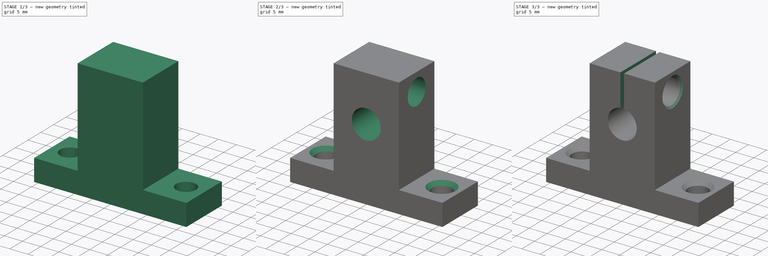
[diagram: build sequence overview — one tinted view per stage of 3, left to right]
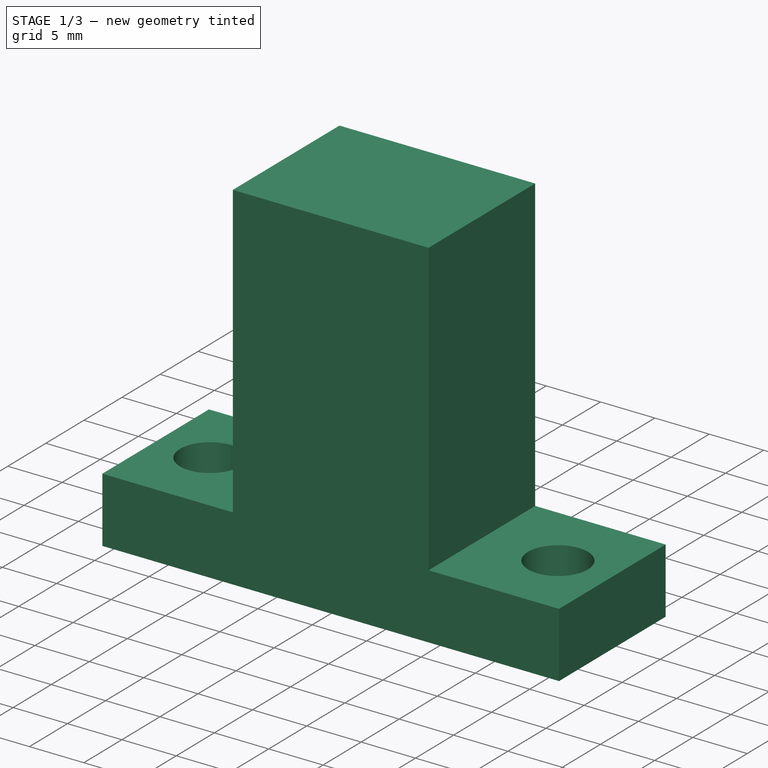
[diagram: stage 1 of 3 — iso view after this stage's code; geometry added in this stage tinted green]
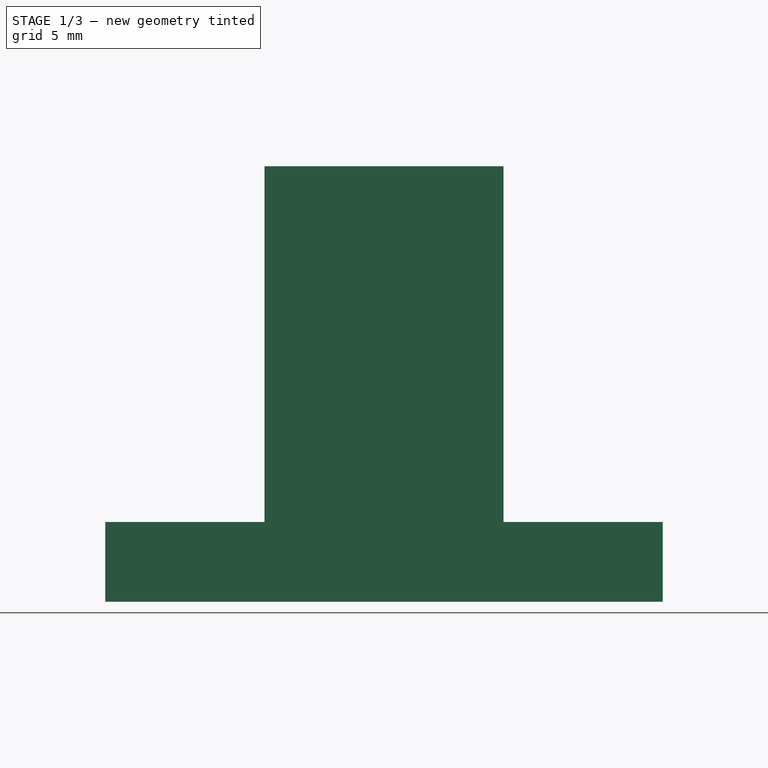
[diagram: stage 1 of 3 — front view after this stage's code; geometry added in this stage tinted green]
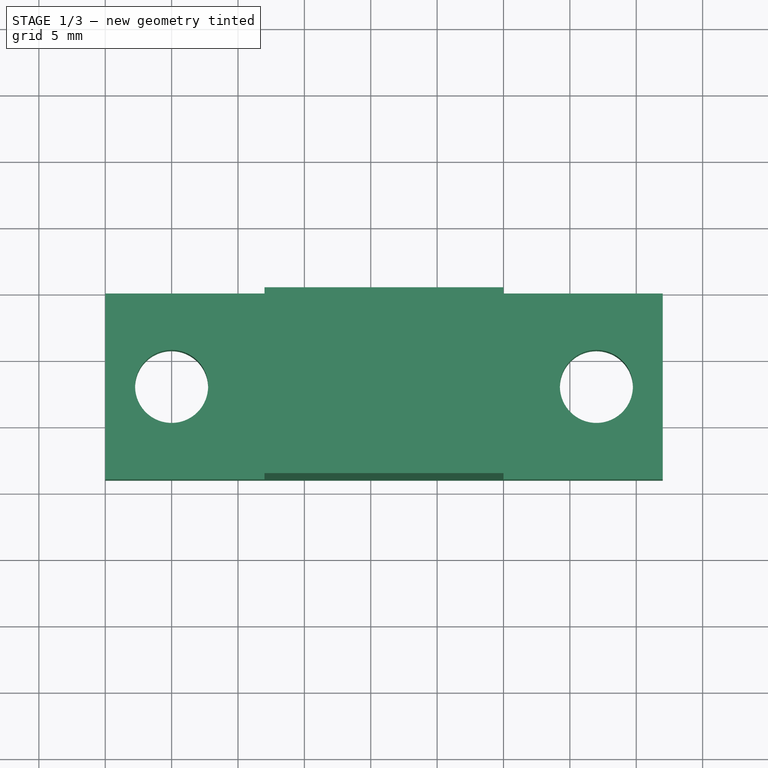
[diagram: stage 1 of 3 — top view after this stage's code; geometry added in this stage tinted green]
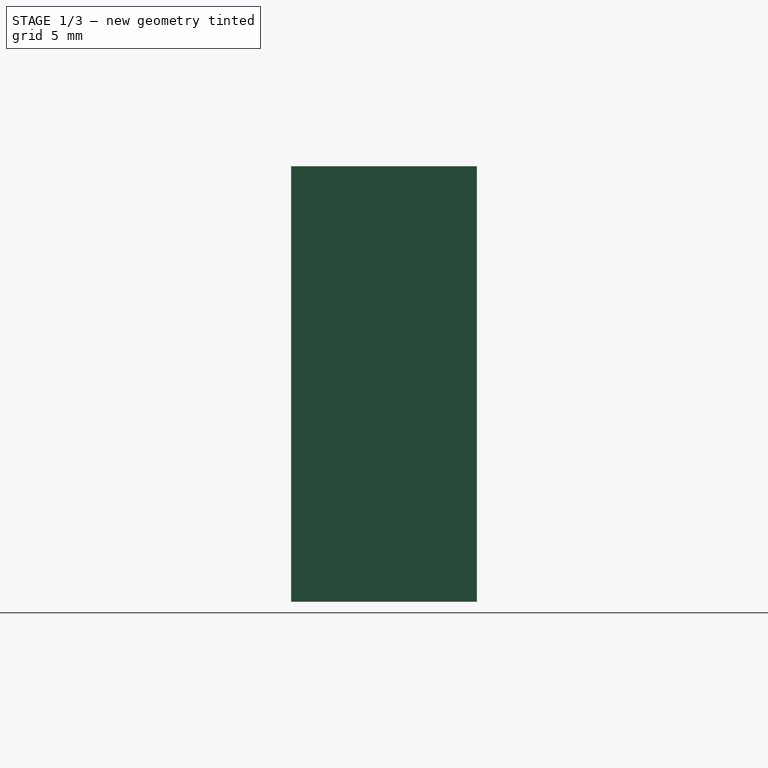
[diagram: stage 1 of 3 — right view after this stage's code; geometry added in this stage tinted green]
FCSTD DOCUMENT  (FreeCAD 2022.111R30764 (Git))
Label: SK08
Comment: This model is licensed under CC-BY 3.0.\n\nDon´t forget to share your modifications with the community.
License: Creative Commons Attribution
LicenseURL: http://creativecommons.org/licenses/by/4.0/
objects: Sketcher::SketchObject×5, PartDesign::Pocket×4, PartDesign::Chamfer×2, PartDesign::Pad×1, PartDesign::Body×1, App::Part×1
note: 27 computed .brp shape members not serialized (recipe doc carries the construction recipe); baked Part::Feature solids carry a one-line shape summary decoded from their .brp

FEATURE [Sketcher::SketchObject] Sketch
  FullyConstrained = true
  MapMode = 5
  Placement = pos=(0,0,0) rot=(1,0,0;1.5708rad)
  Support = -> [XZ_Plane]
  TreeRank = 0
  sketch-geometry (8):
    g0: LineSegment StartX=0 StartY=0 StartZ=0 EndX=42 EndY=0 EndZ=0
    g1: LineSegment StartX=42 StartY=0 StartZ=0 EndX=42 EndY=6 EndZ=0
    g2: LineSegment StartX=42 StartY=6 StartZ=0 EndX=30 EndY=6 EndZ=0
    g3: LineSegment StartX=30 StartY=6 StartZ=0 EndX=30 EndY=32.8 EndZ=0
    g4: LineSegment StartX=30 StartY=32.8 StartZ=0 EndX=12 EndY=32.8 EndZ=0
    g5: LineSegment StartX=12 StartY=32.8 StartZ=0 EndX=12 EndY=6 EndZ=0
    g6: LineSegment StartX=12 StartY=6 StartZ=0 EndX=0 EndY=6 EndZ=0
    g7: LineSegment StartX=0 StartY=6 StartZ=0 EndX=0 EndY=0 EndZ=0
  constraints (23):
    c: Coincident(g-1,g0)
    c: PointOnObject(g0,g-1)
    c: Coincident(g0,g1)
    c: Vertical(g1)
    c: Coincident(g1,g2)
    c: Horizontal(g2)
    c: Coincident(g2,g3)
    c: Vertical(g3)
    c: Coincident(g3,g4)
    c: Horizontal(g4)
    c: Coincident(g4,g5)
    c: Vertical(g5)
    c: Coincident(g5,g6)
    c: Horizontal(g6)
    c: Coincident(g6,g7)
    c: Coincident(g7,g0)
    c: Vertical(g7)
    c: DistanceX(g0,g0) = 42
    c: DistanceX(g4,g4) = 18
    c: DistanceY(g1,g1) = 6
    c: DistanceY(g0,g3) = 32.8
    c: DistanceX(g6,g6) = 12
    c: Horizontal(g5,g2)
FEATURE [PartDesign::Pad] Pad
  AddSubType = 0
  CheckUpToFaceLimits = true
  ClaimChildren = false
  Direction = (0,-1,-2e-16)
  Fit = 0
  FitJoin = 0
  InnerFit = 0
  InnerFitJoin = 0
  InnerTaperAngle = 0
  InnerTaperAngleRev = 0
  Length = 14
  Length2 = 100
  NewSolid = false
  Placement = pos=(0,0,0) rot=(1,0,0;1.5708rad)
  Profile = -> Sketch
  Suppress = false
  TreeRank = 0
  Type = 0
  _ProfileBasedVersion = 0
FEATURE [Sketcher::SketchObject] Sketch001
  ExternalGeometry = -> [Pad]
  FullyConstrained = true
  MapMode = 5
  Placement = pos=(0,-1.3e-15,6) rot=(0,0,1;3.14159rad)
  Support = -> [Pad]
  TreeRank = 0
  sketch-geometry (2):
    g0: Circle CenterX=-37 CenterY=7 CenterZ=0 NormalX=0 NormalY=0 NormalZ=1 AngleXU=0 Radius=2.75
    g1: Circle CenterX=-5 CenterY=7 CenterZ=0 NormalX=0 NormalY=0 NormalZ=1 AngleXU=0 Radius=2.75
  constraints (6):
    c: Equal(g1,g0)
    c: Radius(g1) = 2.75
    c: DistanceX(g0,g1) = 32
    c: DistanceX(g-6,g0) = 5
    c: Horizontal(g1,g0)
    c: DistanceY(g-4,g0) = 7
FEATURE [PartDesign::Pocket] Pocket
  AddSubType = 1
  BaseFeature = -> Pad
  CheckUpToFaceLimits = true
  ClaimChildren = false
  Fit = 0
  FitJoin = 0
  InnerFit = 0
  InnerFitJoin = 0
  InnerTaperAngle = 0
  InnerTaperAngleRev = 0
  Length = 5
  Length2 = 100
  NewSolid = false
  Placement = pos=(0,0,0) rot=(1,0,0;1.5708rad)
  Profile = -> Sketch001
  Suppress = false
  TreeRank = 0
  Type = 2
  _ProfileBasedVersion = 0
  _Version = 0
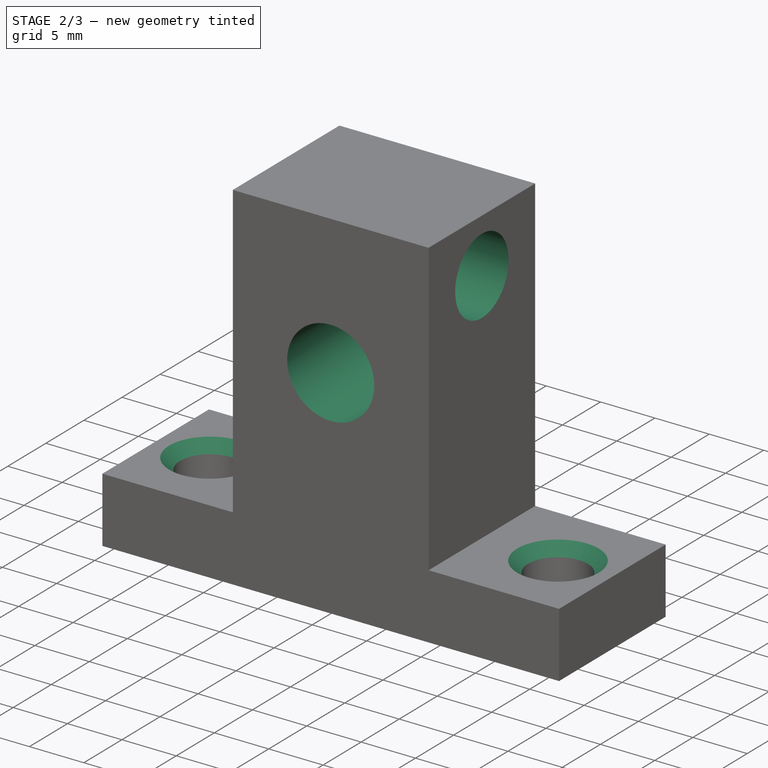
[diagram: stage 2 of 3 — iso view after this stage's code; geometry added in this stage tinted green]
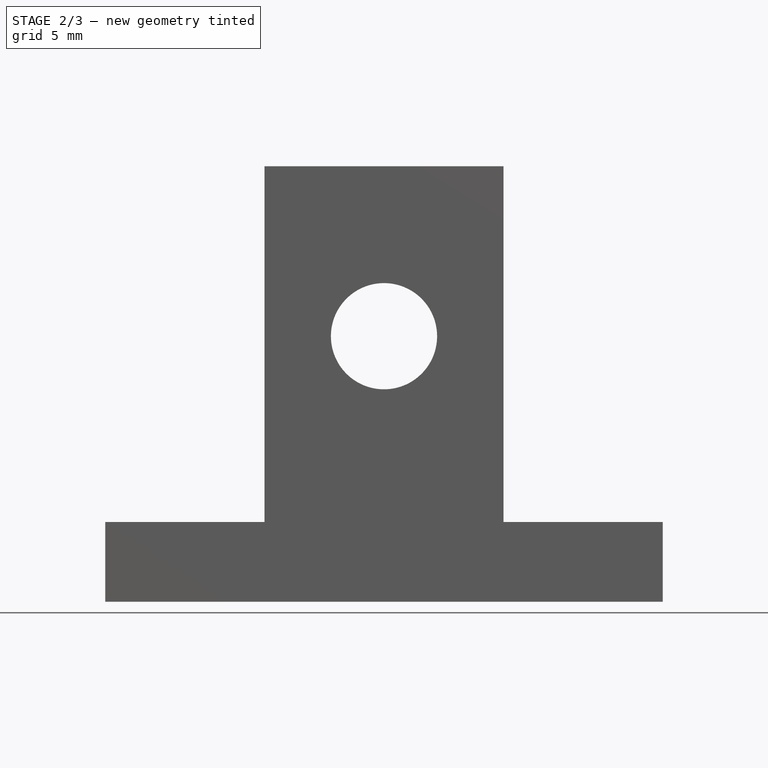
[diagram: stage 2 of 3 — front view after this stage's code; geometry added in this stage tinted green]
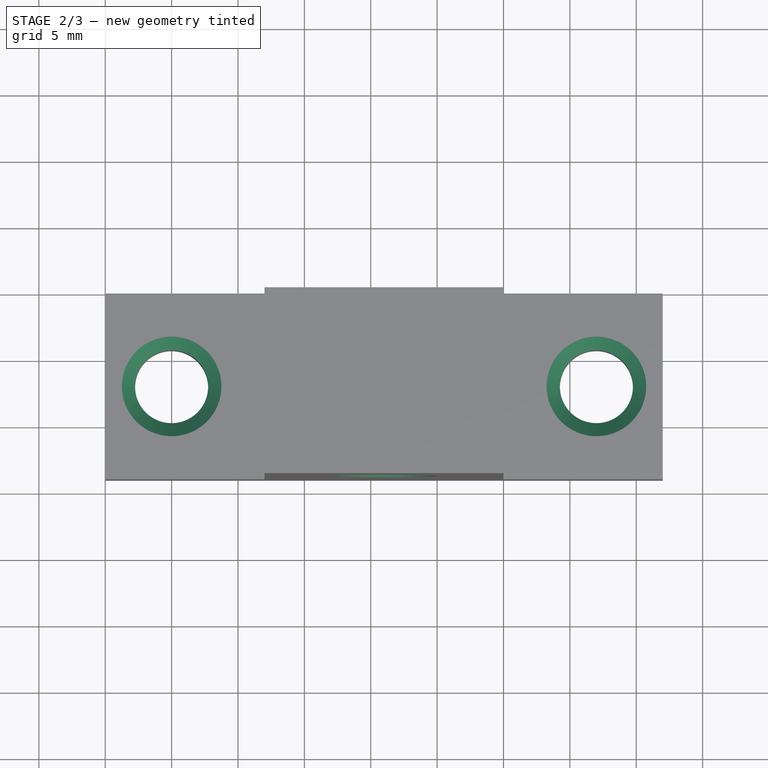
[diagram: stage 2 of 3 — top view after this stage's code; geometry added in this stage tinted green]
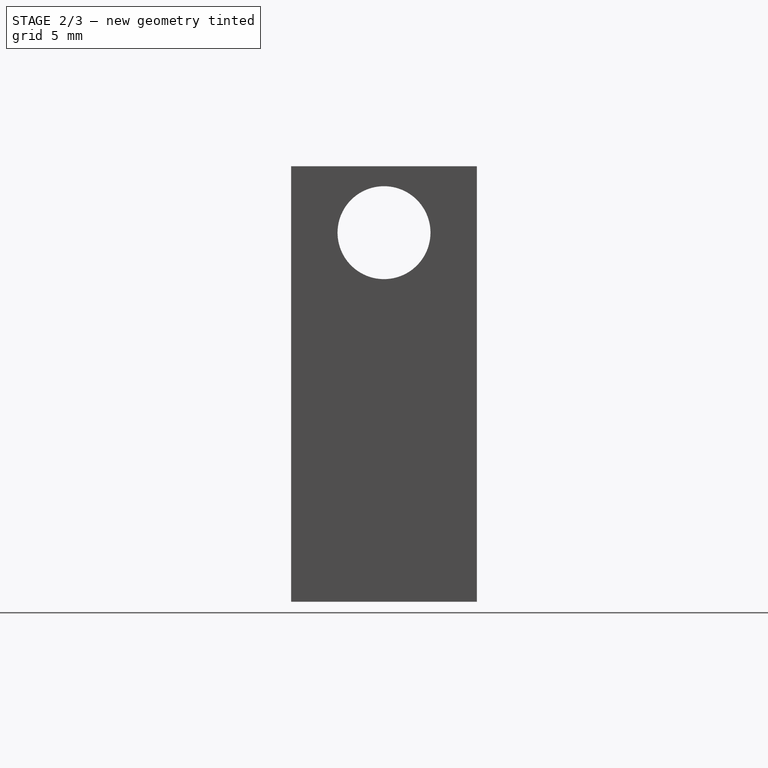
[diagram: stage 2 of 3 — right view after this stage's code; geometry added in this stage tinted green]
FEATURE [PartDesign::Chamfer] Chamfer
  AddSubType = 0
  Angle = 45
  Base = -> Pocket [Edge23,Edge25]
  BaseFeature = -> Pocket
  ChamferType = 0
  FlipDirection = false
  NewSolid = false
  Placement = pos=(0,0,0) rot=(1,0,0;1.5708rad)
  Size = 1
  Size2 = 1
  SupportTransform = false
  Suppress = false
  TreeRank = 0
FEATURE [Sketcher::SketchObject] Sketch002
  ExternalGeometry = -> [Chamfer]
  FullyConstrained = true
  MapMode = 5
  Placement = pos=(12,0,0) rot=(0.707107,0,-0.707107;3.14159rad)
  Support = -> [Chamfer]
  TreeRank = 0
  sketch-geometry (1):
    g0: Circle CenterX=-27.8 CenterY=7 CenterZ=0 NormalX=0 NormalY=0 NormalZ=1 AngleXU=0 Radius=3.5
  constraints (3):
    c: Radius(g0) = 3.5
    c: DistanceX(g0,g-1) = 27.8
    c: DistanceY(g0,g-5) = 7
FEATURE [PartDesign::Pocket] Pocket001
  AddSubType = 1
  BaseFeature = -> Chamfer
  CheckUpToFaceLimits = true
  ClaimChildren = false
  Fit = 0
  FitJoin = 0
  InnerFit = 0
  InnerFitJoin = 0
  InnerTaperAngle = 0
  InnerTaperAngleRev = 0
  Length = 5
  Length2 = 100
  NewSolid = false
  Placement = pos=(0,0,0) rot=(1,0,0;1.5708rad)
  Profile = -> Sketch002
  Suppress = false
  TreeRank = 0
  Type = 2
  _ProfileBasedVersion = 0
  _Version = 0
FEATURE [Sketcher::SketchObject] Sketch003
  FullyConstrained = true
  MapMode = 5
  Placement = pos=(0,-14,-3.1e-15) rot=(1,0,0;1.5708rad)
  Support = -> [Pocket001]
  TreeRank = 0
  sketch-geometry (1):
    g0: Circle CenterX=21 CenterY=20 CenterZ=0 NormalX=0 NormalY=0 NormalZ=1 AngleXU=0 Radius=4
  constraints (3):
    c: Radius(g0) = 4
    c: DistanceY(g-1,g0) = 20
    c: DistanceX(g-1,g0) = 21
FEATURE [PartDesign::Pocket] Pocket002
  AddSubType = 1
  BaseFeature = -> Pocket001
  CheckUpToFaceLimits = true
  ClaimChildren = false
  Fit = 0
  FitJoin = 0
  InnerFit = 0
  InnerFitJoin = 0
  InnerTaperAngle = 0
  InnerTaperAngleRev = 0
  Length = 5
  Length2 = 100
  NewSolid = false
  Placement = pos=(0,0,0) rot=(1,0,0;1.5708rad)
  Profile = -> Sketch003
  Suppress = false
  TreeRank = 0
  Type = 2
  _ProfileBasedVersion = 0
  _Version = 0
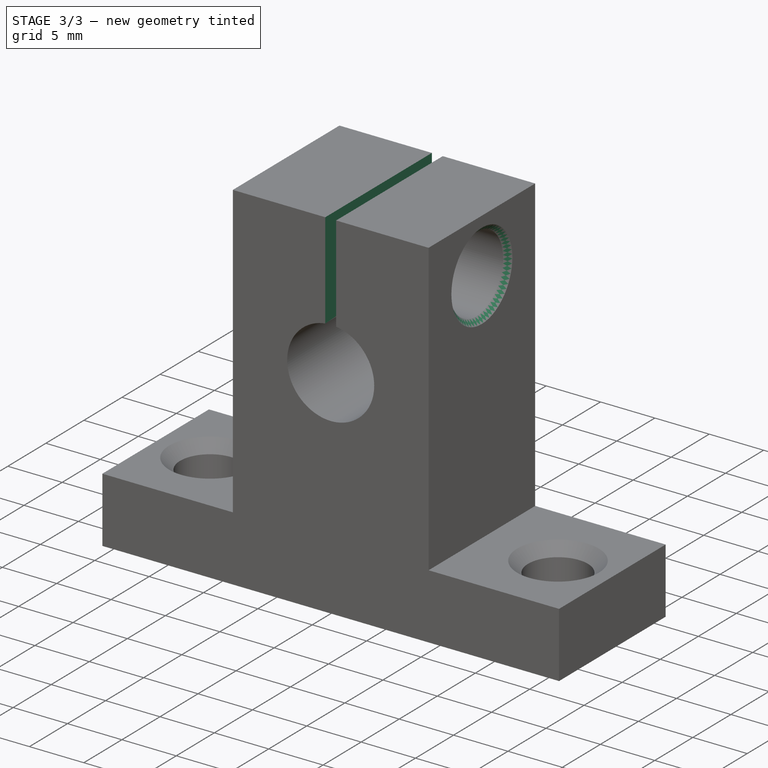
[diagram: stage 3 of 3 — iso view after this stage's code; geometry added in this stage tinted green]
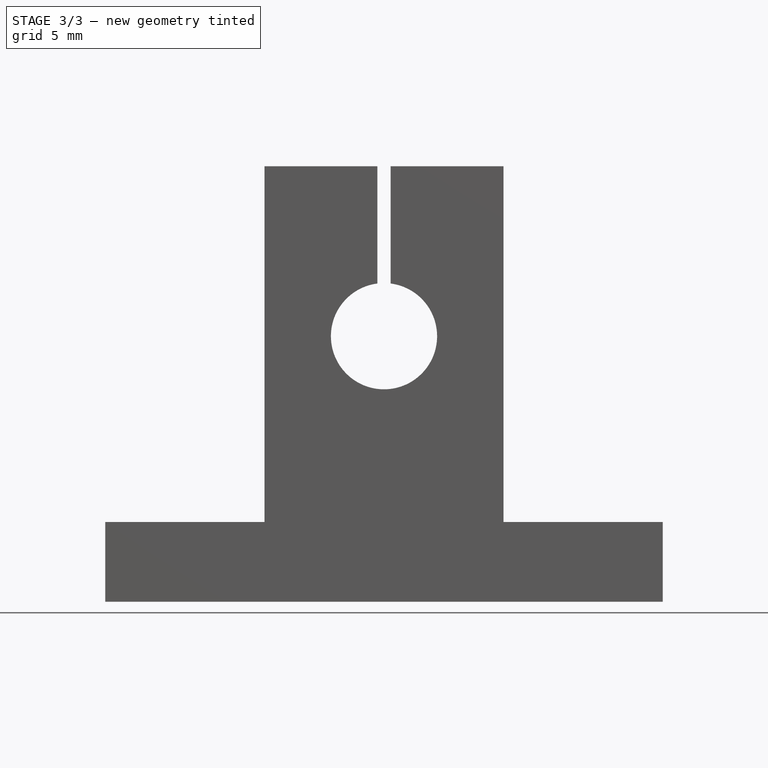
[diagram: stage 3 of 3 — front view after this stage's code; geometry added in this stage tinted green]
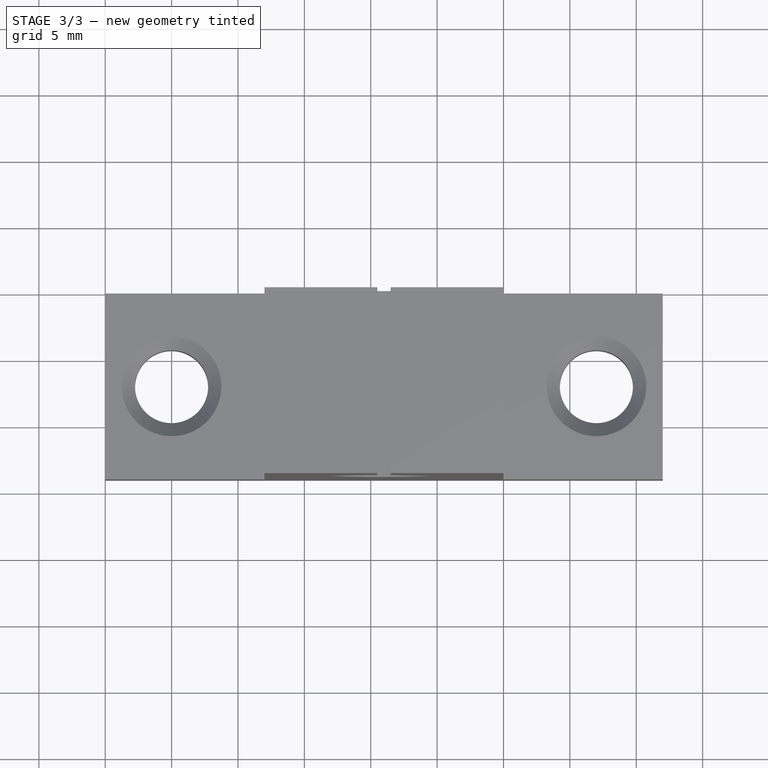
[diagram: stage 3 of 3 — top view after this stage's code; geometry added in this stage tinted green]
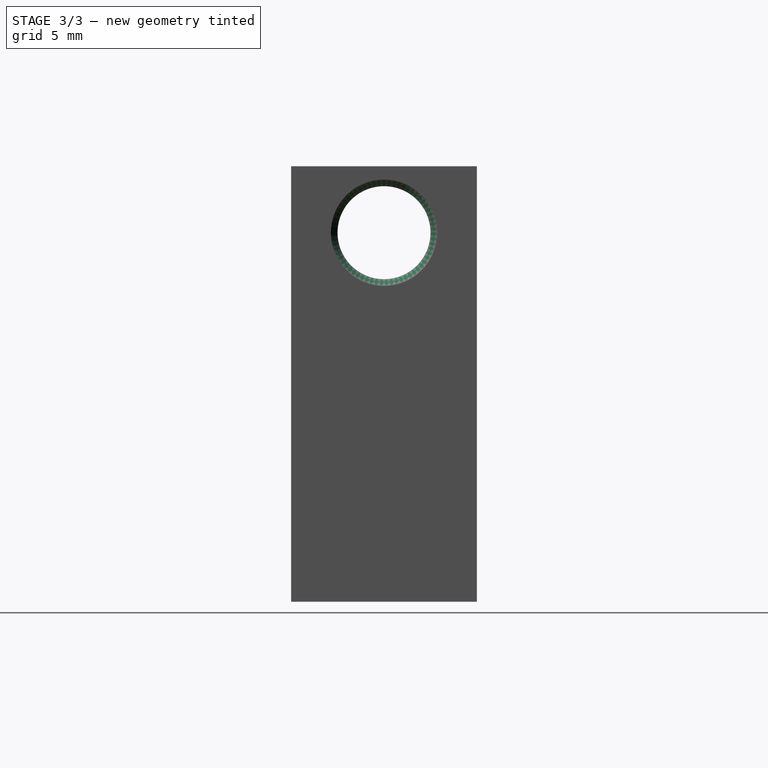
[diagram: stage 3 of 3 — right view after this stage's code; geometry added in this stage tinted green]
FEATURE [Sketcher::SketchObject] Sketch004
  ExternalGeometry = -> [Pocket002]
  FullyConstrained = true
  MapMode = 5
  Placement = pos=(0,-7.3e-15,32.8) rot=(0,0,1;3.14159rad)
  Support = -> [Pocket002]
  TreeRank = 0
  sketch-geometry (4):
    g0: LineSegment StartX=-21.5 StartY=14 StartZ=0 EndX=-20.5 EndY=14 EndZ=0
    g1: LineSegment StartX=-20.5 StartY=14 StartZ=0 EndX=-20.5 EndY=0 EndZ=0
    g2: LineSegment StartX=-20.5 StartY=0 StartZ=0 EndX=-21.5 EndY=0 EndZ=0
    g3: LineSegment StartX=-21.5 StartY=0 StartZ=0 EndX=-21.5 EndY=14 EndZ=0
  constraints (12):
    c: Coincident(g0,g1)
    c: Coincident(g1,g2)
    c: Coincident(g2,g3)
    c: Coincident(g3,g0)
    c: Horizontal(g0)
    c: Horizontal(g2)
    c: Vertical(g1)
    c: Vertical(g3)
    c: PointOnObject(g0,g-3)
    c: PointOnObject(g1,g-4)
    c: DistanceX(g0,g0) = 1
    c: DistanceX(g1,g-1) = 20.5
FEATURE [PartDesign::Pocket] Pocket003
  AddSubType = 1
  BaseFeature = -> Pocket002
  CheckUpToFaceLimits = true
  ClaimChildren = false
  Fit = 0
  FitJoin = 0
  InnerFit = 0
  InnerFitJoin = 0
  InnerTaperAngle = 0
  InnerTaperAngleRev = 0
  Length = 0
  Length2 = 100
  NewSolid = false
  Placement = pos=(0,0,0) rot=(1,0,0;1.5708rad)
  Profile = -> Sketch004
  Suppress = false
  TreeRank = 0
  Type = 3
  UpToFace = -> Pocket002 [Face14]
  _ProfileBasedVersion = 0
  _Version = 0
FEATURE [PartDesign::Chamfer] Chamfer001
  AddSubType = 0
  Angle = 45
  Base = -> Pocket003 [Edge45,Edge41]
  BaseFeature = -> Pocket003
  ChamferType = 0
  FlipDirection = false
  NewSolid = false
  Placement = pos=(0,0,0) rot=(1,0,0;1.5708rad)
  Size = 0.5
  Size2 = 1
  SupportTransform = false
  Suppress = false
  TreeRank = 0
FEATURE [PartDesign::Body] Body  label="SK08 body"
  AutoGroupSolids = false
  ExportMode = 0
  Group = -> [Sketch,Pad,Sketch001,Pocket,Chamfer,Sketch002,Pocket001,Sketch003,Pocket002,Sketch004,Pocket003,Chamfer001]
  Origin = -> Origin
  Tip = -> Chamfer001
  TreeRank = 0
  _ExportChildren = -> [Pad,Pocket,Chamfer,Pocket001,Pocket002,Pocket003,Chamfer001]
  _GroupVersion = 1
FEATURE [App::Part] Part  label="SK08"
  ExportMode = 1
  Group = -> [Body]
  Origin = -> Origin001
  TreeRank = 5
  _ExportChildren = -> [Body]
  _GroupVersion = 1
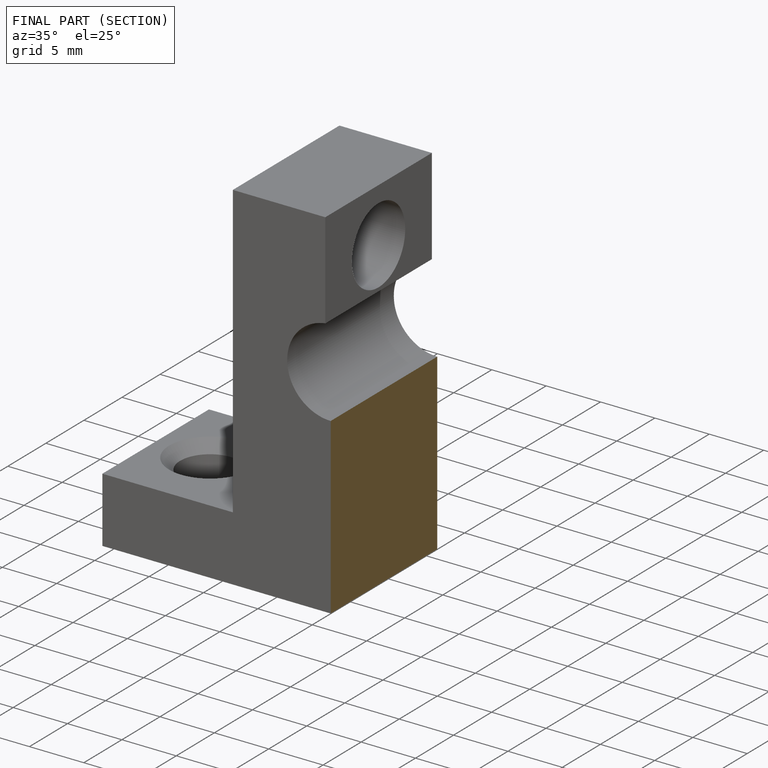
[diagram: finished part — half-section view (interior)]
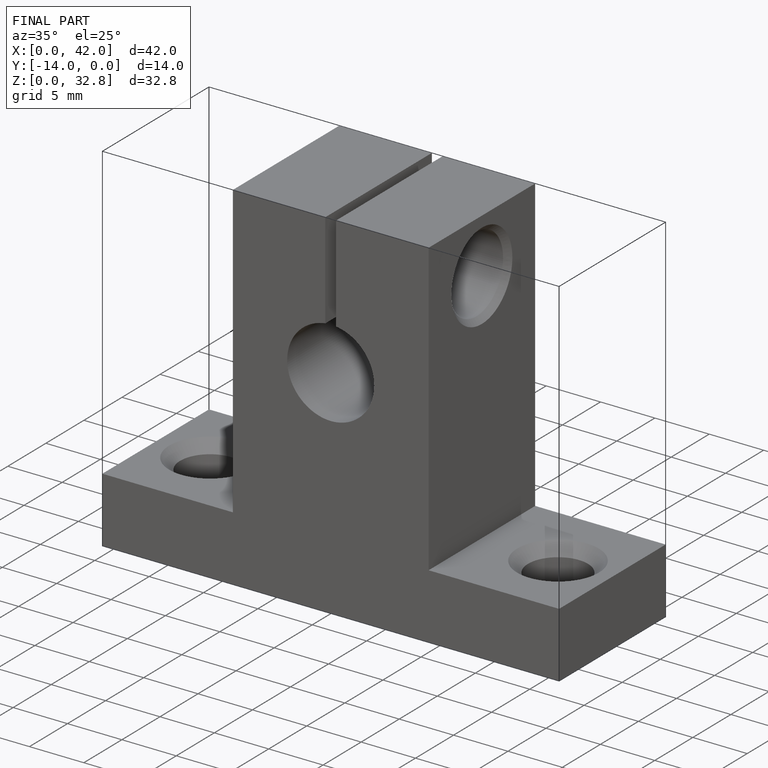
[diagram: finished part — iso view with bounding-box wireframe]
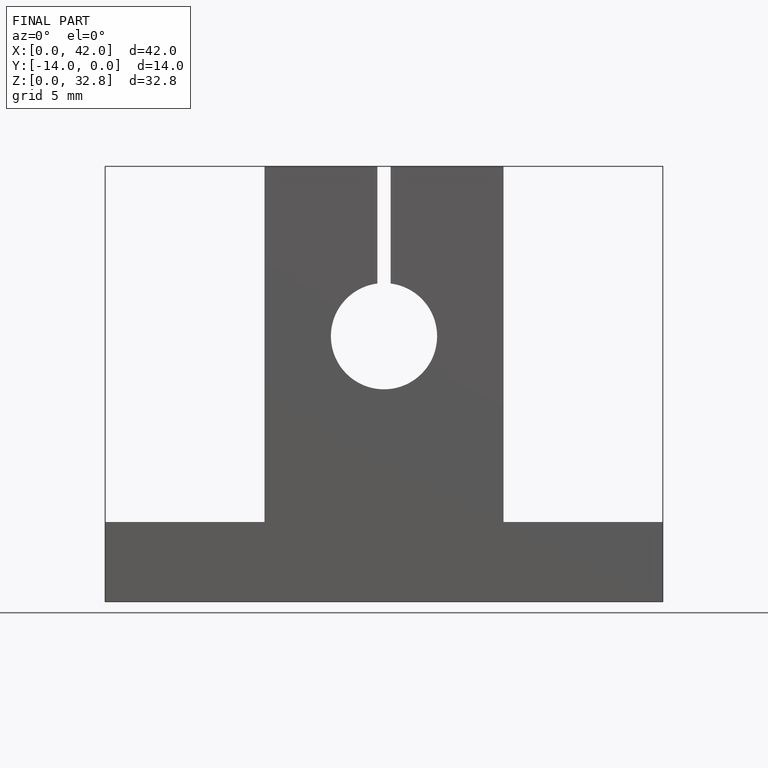
[diagram: finished part — front view with bounding-box wireframe]
